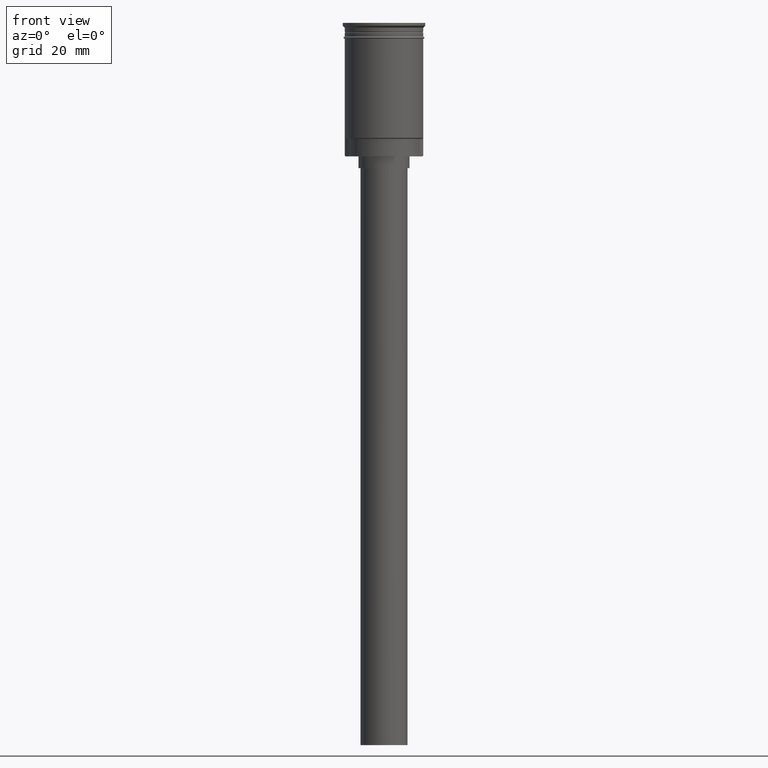
[diagram: clean part render]
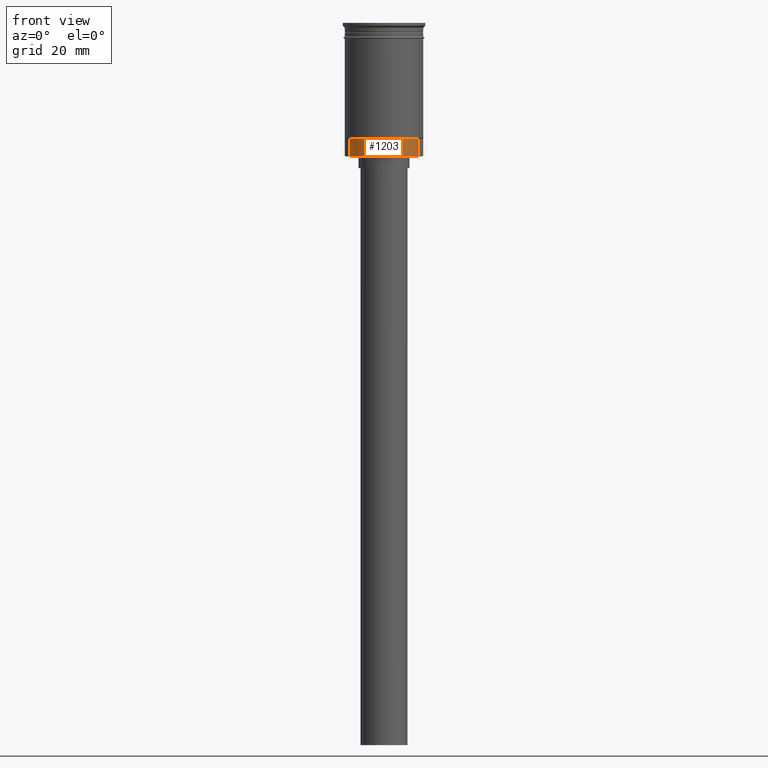
[diagram: same view with one face highlighted and labeled with its STEP entity id]
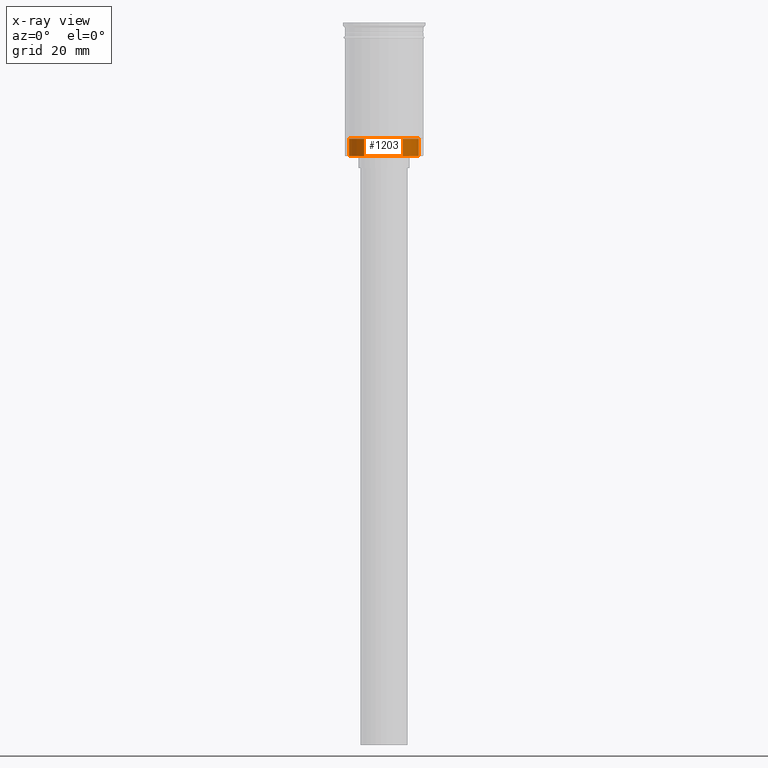
[diagram: x-ray of the same camera — body ghosted, the highlighted face saturated]
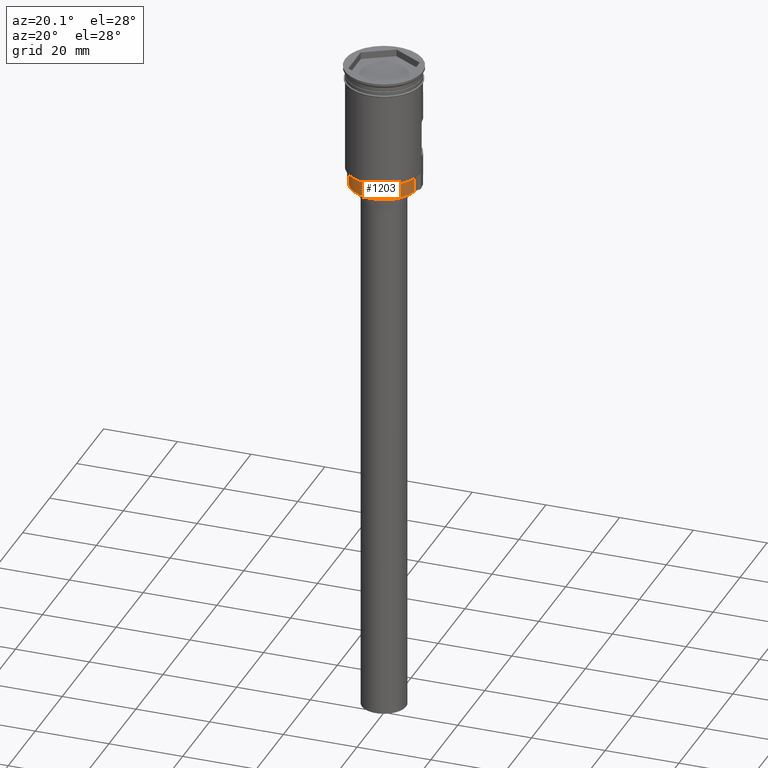
[diagram: same view with one face highlighted and labeled with its STEP entity id]
A machine part, front view. The second image highlights one B-rep face of the part: STEP entity #1203.
The next image is the same camera in x-ray: the body ghosted, the highlighted face saturated — about 0% of this face is hidden behind the body in this view.
A second angle (auxiliary view) of the same face is appended — the face is thin or edge-on in the first view.
In plain terms, the highlighted cylindrical surface (edge-blend (fillet) strip) has radius 9.05 mm, axis along (-0, -0, 1).
Its self-contained STEP definition (entity closure, byte-faithful):
#15 = VECTOR ( 'NONE', #1179, 1000.000000000000000 ) ;
#116 = DIRECTION ( 'NONE',  ( 0.000000000000000000, 0.000000000000000000, -1.000000000000000000 ) ) ;
#117 = FACE_OUTER_BOUND ( 'NONE', #1535, .T. ) ;
#371 = DIRECTION ( 'NONE',  ( 1.000000000000000000, 0.000000000000000000, 0.000000000000000000 ) ) ;
#464 = DIRECTION ( 'NONE',  ( 0.000000000000000000, 0.000000000000000000, -1.000000000000000000 ) ) ;
#542 = EDGE_CURVE ( 'NONE', #1520, #596, #753, .T. ) ;
#557 = DIRECTION ( 'NONE',  ( -0.000000000000000000, -0.000000000000000000, 1.000000000000000000 ) ) ;
#596 = VERTEX_POINT ( 'NONE', #1186 ) ;
#613 = DIRECTION ( 'NONE',  ( -1.000000000000000000, 0.000000000000000000, 0.000000000000000000 ) ) ;
#640 = EDGE_CURVE ( 'NONE', #1266, #1495, #876, .T. ) ;
#650 = AXIS2_PLACEMENT_3D ( 'NONE', #1579, #1459, #371 ) ;
#698 = CARTESIAN_POINT ( 'NONE',  ( -8.869844917012439822, -1.796761294148008892, -33.99999999999999289 ) ) ;
#733 = CARTESIAN_POINT ( 'NONE',  ( 8.869844917012441599, -1.796761294148009780, -29.50000000000000000 ) ) ;
#753 = CIRCLE ( 'NONE', #953, 9.049999999999991829 ) ;
#788 = ORIENTED_EDGE ( 'NONE', *, *, #542, .T. ) ;
#795 = LINE ( 'NONE', #1064, #956 ) ;
#876 = CIRCLE ( 'NONE', #1183, 9.049999999999991829 ) ;
#947 = LINE ( 'NONE', #1435, #15 ) ;
#953 = AXIS2_PLACEMENT_3D ( 'NONE', #1227, #116, #613 ) ;
#956 = VECTOR ( 'NONE', #557, 1000.000000000000000 ) ;
#966 = DIRECTION ( 'NONE',  ( -1.000000000000000000, 0.000000000000000000, 0.000000000000000000 ) ) ;
#968 = EDGE_CURVE ( 'NONE', #1495, #596, #795, .T. ) ;
#976 = EDGE_CURVE ( 'NONE', #1266, #1520, #947, .T. ) ;
#1064 = CARTESIAN_POINT ( 'NONE',  ( -8.869844917012439822, -1.796761294148008892, -33.99999999999999289 ) ) ;
#1076 = ORIENTED_EDGE ( 'NONE', *, *, #968, .F. ) ;
#1095 = CYLINDRICAL_SURFACE ( 'NONE', #650, 9.049999999999991829 ) ;
#1179 = DIRECTION ( 'NONE',  ( -0.000000000000000000, -0.000000000000000000, 1.000000000000000000 ) ) ;
#1183 = AXIS2_PLACEMENT_3D ( 'NONE', #1334, #464, #966 ) ;
#1186 = CARTESIAN_POINT ( 'NONE',  ( -8.869844917012439822, -1.796761294148008892, -29.50000000000000000 ) ) ;
#1203 = ADVANCED_FACE ( 'NONE', ( #117 ), #1095, .T. ) ;
#1227 = CARTESIAN_POINT ( 'NONE',  ( 0.000000000000000000, 0.000000000000000000, -29.50000000000000000 ) ) ;
#1266 = VERTEX_POINT ( 'NONE', #1485 ) ;
#1270 = ORIENTED_EDGE ( 'NONE', *, *, #640, .F. ) ;
#1334 = CARTESIAN_POINT ( 'NONE',  ( 0.000000000000000000, 0.000000000000000000, -33.99999999999999289 ) ) ;
#1435 = CARTESIAN_POINT ( 'NONE',  ( 8.869844917012441599, -1.796761294148009780, -33.99999999999999289 ) ) ;
#1459 = DIRECTION ( 'NONE',  ( -0.000000000000000000, -0.000000000000000000, 1.000000000000000000 ) ) ;
#1485 = CARTESIAN_POINT ( 'NONE',  ( 8.869844917012441599, -1.796761294148009780, -33.99999999999999289 ) ) ;
#1495 = VERTEX_POINT ( 'NONE', #698 ) ;
#1520 = VERTEX_POINT ( 'NONE', #733 ) ;
#1535 = EDGE_LOOP ( 'NONE', ( #788, #1076, #1270, #1588 ) ) ;
#1579 = CARTESIAN_POINT ( 'NONE',  ( 0.000000000000000000, 0.000000000000000000, -33.99999999999999289 ) ) ;
#1588 = ORIENTED_EDGE ( 'NONE', *, *, #976, .T. ) ;